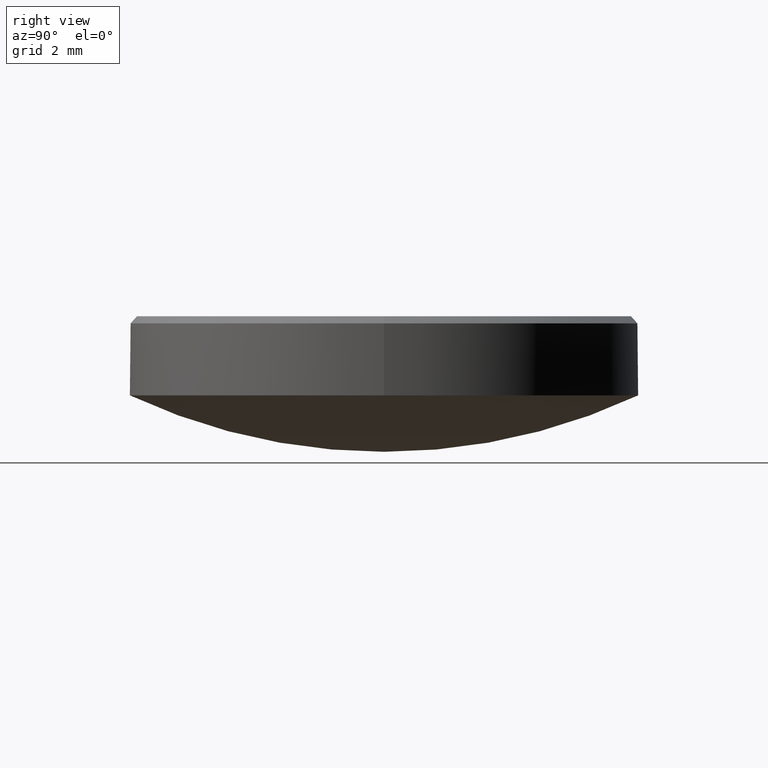
[diagram: clean part render]
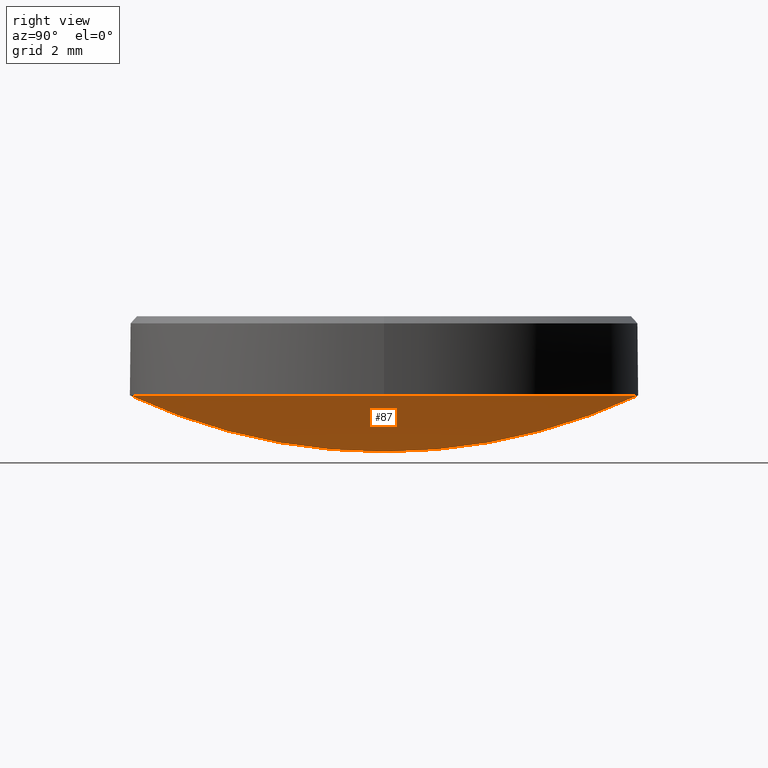
[diagram: same view with one face highlighted and labeled with its STEP entity id]
A machine part, right view. The second image highlights one B-rep face of the part: STEP entity #87.
In plain terms, the highlighted spherical surface has radius 15 mm.
Its self-contained STEP definition (entity closure, byte-faithful):
#3 = EDGE_CURVE ( 'NONE', #138, #42, #12, .T. ) ;
#12 = CIRCLE ( 'NONE', #92, 15.00000000000000355 ) ;
#13 = DIRECTION ( 'NONE',  ( 0.000000000000000000, 0.000000000000000000, -1.000000000000000000 ) ) ;
#16 = DIRECTION ( 'NONE',  ( 1.000000000000000000, 0.000000000000000000, 0.000000000000000000 ) ) ;
#29 = DIRECTION ( 'NONE',  ( 1.000000000000000000, -0.000000000000000000, 0.000000000000000000 ) ) ;
#32 = AXIS2_PLACEMENT_3D ( 'NONE', #260, #55, #16 ) ;
#38 = DIRECTION ( 'NONE',  ( 1.000000000000000000, 0.000000000000000000, 0.000000000000000000 ) ) ;
#42 = VERTEX_POINT ( 'NONE', #202 ) ;
#46 = ORIENTED_EDGE ( 'NONE', *, *, #54, .F. ) ;
#51 = CARTESIAN_POINT ( 'NONE',  ( 0.000000000000000000, 9.184850993605149917E-16, 2.589610001762374214 ) ) ;
#54 = EDGE_CURVE ( 'NONE', #131, #42, #230, .T. ) ;
#55 = DIRECTION ( 'NONE',  ( -0.000000000000000000, -0.000000000000000000, 1.000000000000000000 ) ) ;
#70 = AXIS2_PLACEMENT_3D ( 'NONE', #149, #125, #38 ) ;
#74 = CARTESIAN_POINT ( 'NONE',  ( 0.000000000000000000, 0.000000000000000000, 17.58961000176237732 ) ) ;
#77 = DIRECTION ( 'NONE',  ( 0.000000000000000000, 1.000000000000000000, 0.000000000000000000 ) ) ;
#84 = CARTESIAN_POINT ( 'NONE',  ( -7.776507174585693149E-16, -6.350000000000001421, 3.999999999999999112 ) ) ;
#86 = EDGE_CURVE ( 'NONE', #254, #131, #115, .T. ) ;
#87 = ADVANCED_FACE ( 'NONE', ( #144 ), #101, .T. ) ;
#91 = ORIENTED_EDGE ( 'NONE', *, *, #86, .F. ) ;
#92 = AXIS2_PLACEMENT_3D ( 'NONE', #74, #29, #13 ) ;
#101 = SPHERICAL_SURFACE ( 'NONE', #259, 15.00000000000000355 ) ;
#115 = CIRCLE ( 'NONE', #70, 6.349999999999998757 ) ;
#125 = DIRECTION ( 'NONE',  ( -0.000000000000000000, -0.000000000000000000, 1.000000000000000000 ) ) ;
#126 = DIRECTION ( 'NONE',  ( -1.000000000000000000, 0.000000000000000000, 0.000000000000000000 ) ) ;
#131 = VERTEX_POINT ( 'NONE', #257 ) ;
#138 = VERTEX_POINT ( 'NONE', #51 ) ;
#140 = DIRECTION ( 'NONE',  ( -1.000000000000000000, 1.224646799147353207E-16, 0.000000000000000000 ) ) ;
#144 = FACE_OUTER_BOUND ( 'NONE', #172, .T. ) ;
#149 = CARTESIAN_POINT ( 'NONE',  ( 0.000000000000000000, 0.000000000000000000, 4.000000000000000000 ) ) ;
#157 = ORIENTED_EDGE ( 'NONE', *, *, #209, .F. ) ;
#163 = DIRECTION ( 'NONE',  ( -1.224646799147352961E-16, -1.000000000000000000, 0.000000000000000000 ) ) ;
#172 = EDGE_LOOP ( 'NONE', ( #157, #267, #46, #91 ) ) ;
#173 = CIRCLE ( 'NONE', #197, 15.00000000000000355 ) ;
#197 = AXIS2_PLACEMENT_3D ( 'NONE', #271, #140, #163 ) ;
#202 = CARTESIAN_POINT ( 'NONE',  ( 0.000000000000000000, 6.350000000000001421, 3.999999999999999112 ) ) ;
#209 = EDGE_CURVE ( 'NONE', #138, #254, #173, .T. ) ;
#230 = CIRCLE ( 'NONE', #32, 6.349999999999998757 ) ;
#254 = VERTEX_POINT ( 'NONE', #84 ) ;
#257 = CARTESIAN_POINT ( 'NONE',  ( 6.349999999999998757, 7.776507174585691177E-16, 4.000000000000000000 ) ) ;
#259 = AXIS2_PLACEMENT_3D ( 'NONE', #274, #126, #77 ) ;
#260 = CARTESIAN_POINT ( 'NONE',  ( 0.000000000000000000, 0.000000000000000000, 4.000000000000000000 ) ) ;
#267 = ORIENTED_EDGE ( 'NONE', *, *, #3, .T. ) ;
#271 = CARTESIAN_POINT ( 'NONE',  ( 0.000000000000000000, 0.000000000000000000, 17.58961000176237732 ) ) ;
#274 = CARTESIAN_POINT ( 'NONE',  ( 0.000000000000000000, 0.000000000000000000, 17.58961000176237732 ) ) ;